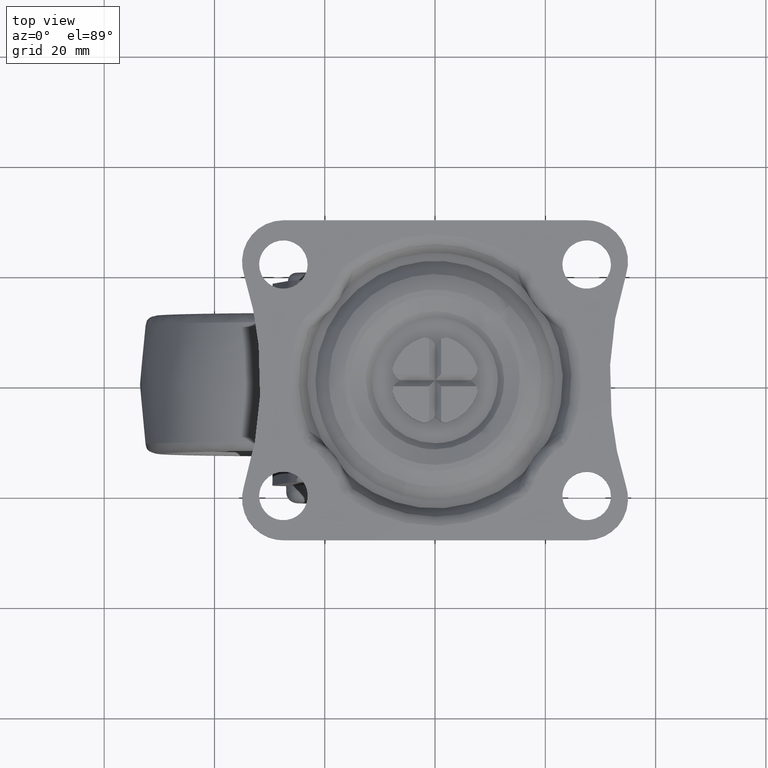
[diagram: clean part render]
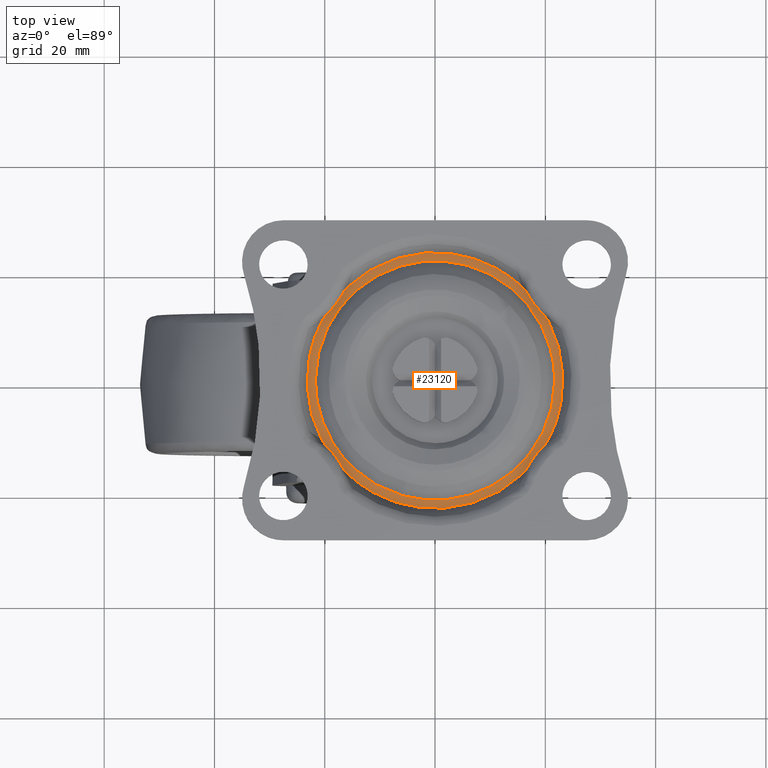
[diagram: same view with one face highlighted and labeled with its STEP entity id]
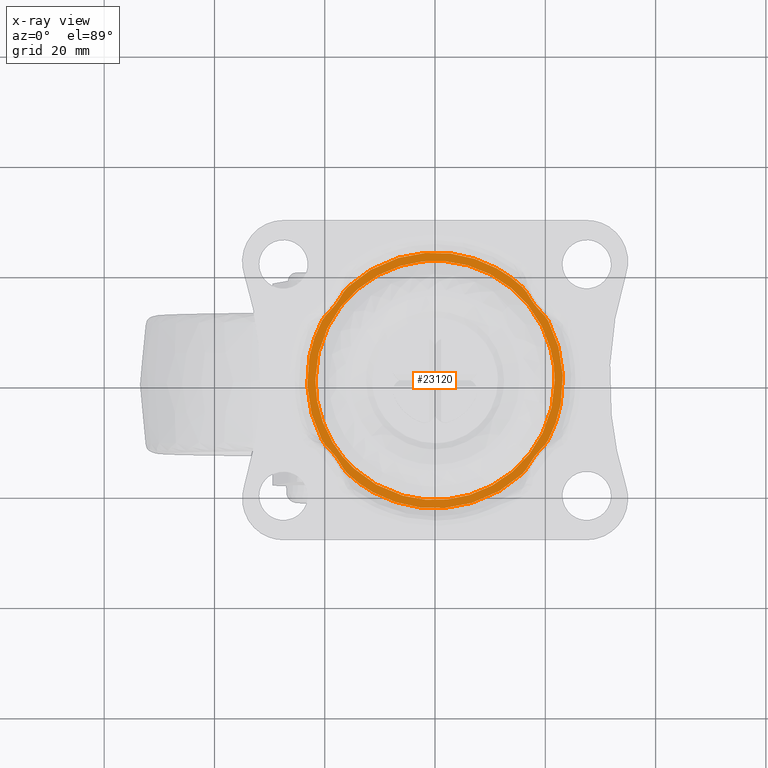
[diagram: x-ray of the same camera — body ghosted, the highlighted face saturated]
A machine part, top view. The second image highlights one B-rep face of the part: STEP entity #23120.
The next image is the same camera in x-ray: the body ghosted, the highlighted face saturated — about 0% of this face is hidden behind the body in this view.
In plain terms, the highlighted face is a freeform B-spline surface patch.
Its self-contained STEP definition (entity closure, byte-faithful):
#15090=CARTESIAN_POINT('',(-5.799073028156984,-20.910781798254249,-3.600002000002258));
#15091=VERTEX_POINT('',#15090);
#15097=CARTESIAN_POINT('',(21.700001000000000,0.0,-3.600002000000000));
#15098=VERTEX_POINT('',#15097);
#15099=CARTESIAN_POINT('',(21.700001000000000,0.0,-3.600002000000000));
#15100=CARTESIAN_POINT('',(21.700000999999993,-21.700000999999993,-3.600002000000001));
#15101=CARTESIAN_POINT('',(0.0,-21.700001000000000,-3.600002000000000));
#15102=CARTESIAN_POINT('',(-2.953240523797016,-21.700001000000004,-3.600002000000001));
#15103=CARTESIAN_POINT('',(-5.799073028156984,-20.910781798254252,-3.600002000002258));
#15111=(BOUNDED_CURVE()B_SPLINE_CURVE(2,(#15099,#15100,#15101,#15102,#15103),.UNSPECIFIED.,.F.,.U.)B_SPLINE_CURVE_WITH_KNOTS((3,2,3),(0.500000000000000,0.750000000000000,0.795548826634293),.UNSPECIFIED.)CURVE()GEOMETRIC_REPRESENTATION_ITEM()RATIONAL_B_SPLINE_CURVE((1.0,0.707106781186548,1.0,0.946636230215624,0.912717717218935))REPRESENTATION_ITEM(''));
#15112=EDGE_CURVE('',#15098,#15091,#15111,.T.);
#15114=CARTESIAN_POINT('',(-21.700001000000000,0.0,-3.600002000000000));
#15115=VERTEX_POINT('',#15114);
#15116=CARTESIAN_POINT('',(-21.700001000000000,0.0,-3.600002000000000));
#15117=CARTESIAN_POINT('',(-21.700000999999993,21.700000999999993,-3.600002000000001));
#15118=CARTESIAN_POINT('',(0.0,21.700001000000000,-3.600002000000000));
#15119=CARTESIAN_POINT('',(21.700000999999993,21.700000999999993,-3.600002000000001));
#15120=CARTESIAN_POINT('',(21.700001000000000,0.0,-3.600002000000000));
#15128=(BOUNDED_CURVE()B_SPLINE_CURVE(2,(#15116,#15117,#15118,#15119,#15120),.UNSPECIFIED.,.F.,.U.)B_SPLINE_CURVE_WITH_KNOTS((3,2,3),(0.0,0.250000000000000,0.500000000000000),.UNSPECIFIED.)CURVE()GEOMETRIC_REPRESENTATION_ITEM()RATIONAL_B_SPLINE_CURVE((1.0,0.707106781186548,1.0,0.707106781186548,1.0))REPRESENTATION_ITEM(''));
#15129=EDGE_CURVE('',#15115,#15098,#15128,.T.);
#15131=CARTESIAN_POINT('',(-18.522360696835559,-11.305405681198110,-3.600002000003324));
#15132=VERTEX_POINT('',#15131);
#15133=CARTESIAN_POINT('',(-18.522360696835559,-11.305405681198108,-3.600002000003324));
#15134=CARTESIAN_POINT('',(-21.700001000000007,-6.099276726655910,-3.600002000000000));
#15135=CARTESIAN_POINT('',(-21.700001000000000,0.0,-3.600002000000000));
#15143=(BOUNDED_CURVE()B_SPLINE_CURVE(2,(#15133,#15134,#15135),.UNSPECIFIED.,.F.,.U.)B_SPLINE_CURVE_WITH_KNOTS((3,3),(0.910988855203651,1.0),.UNSPECIFIED.)CURVE()GEOMETRIC_REPRESENTATION_ITEM()RATIONAL_B_SPLINE_CURVE((0.865692738529966,0.895716957161308,1.0))REPRESENTATION_ITEM(''));
#15144=EDGE_CURVE('',#15132,#15115,#15143,.T.);
#15182=CARTESIAN_POINT('',(-5.799073028156984,-20.910781798254245,-3.600002000002259));
#15183=CARTESIAN_POINT('',(-14.057464632220782,-18.620527111970446,-3.600002000000001));
#15184=CARTESIAN_POINT('',(-18.522360696835555,-11.305405681198108,-3.600002000003324));
#15192=(BOUNDED_CURVE()B_SPLINE_CURVE(2,(#15182,#15183,#15184),.UNSPECIFIED.,.F.,.U.)B_SPLINE_CURVE_WITH_KNOTS((3,3),(0.795548826634294,0.910988855203652),.UNSPECIFIED.)CURVE()GEOMETRIC_REPRESENTATION_ITEM()RATIONAL_B_SPLINE_CURVE((0.912717717218933,0.826753831896366,0.865692738529966))REPRESENTATION_ITEM(''));
#15193=EDGE_CURVE('',#15091,#15132,#15192,.T.);
#20008=CARTESIAN_POINT('',(20.530049277063799,-10.805421004353921,-3.600002000000000));
#20009=VERTEX_POINT('',#20008);
#20023=CARTESIAN_POINT('',(19.024620323779502,-12.646680938458740,-3.600002000000000));
#20024=VERTEX_POINT('',#20023);
#20025=CARTESIAN_POINT('',(19.024620323779502,-12.646680938458740,-3.600002000000000));
#20026=CARTESIAN_POINT('',(19.304072781784900,-12.363145057020530,-3.600002000001871));
#20027=CARTESIAN_POINT('',(19.584817843114529,-12.080666018472000,-3.600002000000000));
#20028=CARTESIAN_POINT('',(19.973236361153251,-11.630212434395309,-3.600002000000001));
#20029=CARTESIAN_POINT('',(20.097347172847339,-11.475677202704111,-3.600002000000000));
#20030=CARTESIAN_POINT('',(20.328586572117519,-11.152721936092741,-3.600002000000000));
#20031=CARTESIAN_POINT('',(20.435844590098771,-10.984407724514391,-3.600002000000000));
#20032=CARTESIAN_POINT('',(20.530049277063799,-10.805421004353921,-3.600002000000000));
#20033=B_SPLINE_CURVE_WITH_KNOTS('',3,(#20025,#20026,#20027,#20028,#20029,#20030,#20031,#20032),.UNSPECIFIED.,.F.,.U.,(4,2,2,4),(0.0,0.499999999999999,0.750000000000000,1.0),.UNSPECIFIED.);
#20034=EDGE_CURVE('',#20024,#20009,#20033,.T.);
#20603=CARTESIAN_POINT('',(15.829909621735750,-16.960365791093050,-3.600002000000000));
#20604=VERTEX_POINT('',#20603);
#20605=CARTESIAN_POINT('',(17.209795816244348,-15.023236841180850,-3.600002000000000));
#20606=VERTEX_POINT('',#20605);
#20607=CARTESIAN_POINT('',(15.829909621735750,-16.960365791093050,-3.600002000000000));
#20608=CARTESIAN_POINT('',(15.977016748611719,-16.823063768728481,-3.600002000000000));
#20609=CARTESIAN_POINT('',(16.110842096708431,-16.675761793889819,-3.600002000000001));
#20610=CARTESIAN_POINT('',(16.361256787577311,-16.368180724434112,-3.600002000000000));
#20611=CARTESIAN_POINT('',(16.477721513431380,-16.207807804789638,-3.600002000000000));
#20612=CARTESIAN_POINT('',(16.699521433103278,-15.878682456003400,-3.600002000000000));
#20613=CARTESIAN_POINT('',(16.804807563023431,-15.709893086279150,-3.600002000000000));
#20614=CARTESIAN_POINT('',(17.009965051494522,-15.368237524196410,-3.600002000000000));
#20615=CARTESIAN_POINT('',(17.109689103661179,-15.195590753369640,-3.600002000000000));
#20616=CARTESIAN_POINT('',(17.209795816244348,-15.023236841180850,-3.600002000000000));
#20617=B_SPLINE_CURVE_WITH_KNOTS('',3,(#20607,#20608,#20609,#20610,#20611,#20612,#20613,#20614,#20615,#20616),.UNSPECIFIED.,.F.,.U.,(4,2,2,2,4),(0.0,0.250000000000000,0.500000000000000,0.750000000000000,1.0),.UNSPECIFIED.);
#20618=EDGE_CURVE('',#20604,#20606,#20617,.T.);
#20838=CARTESIAN_POINT('',(20.530049277063799,10.805421004353899,-3.600002000000000));
#20839=VERTEX_POINT('',#20838);
#20840=CARTESIAN_POINT('',(19.024620323782699,12.646680938455500,-3.600002000000000));
#20841=VERTEX_POINT('',#20840);
#20842=CARTESIAN_POINT('',(20.530049277063799,10.805421004353899,-3.600002000000000));
#20843=CARTESIAN_POINT('',(20.436327569749000,10.983490074381629,-3.600002000000000));
#20844=CARTESIAN_POINT('',(20.329461551832800,11.151379174083690,-3.600002000000001));
#20845=CARTESIAN_POINT('',(20.098671905624641,11.473946641276850,-3.600002000000000));
#20846=CARTESIAN_POINT('',(19.974624950216288,11.628529494714520,-3.600002000000000));
#20847=CARTESIAN_POINT('',(19.715516699500888,11.929164845245889,-3.600002000000000));
#20848=CARTESIAN_POINT('',(19.580406848114048,12.075179736757500,-3.600002000000000));
#20849=CARTESIAN_POINT('',(19.304828417575319,12.363059306712410,-3.600002000000000));
#20850=CARTESIAN_POINT('',(19.164532729241099,12.504724100827710,-3.600002000000000));
#20851=CARTESIAN_POINT('',(19.024620323782699,12.646680938455500,-3.600002000000000));
#20852=B_SPLINE_CURVE_WITH_KNOTS('',3,(#20842,#20843,#20844,#20845,#20846,#20847,#20848,#20849,#20850,#20851),.UNSPECIFIED.,.F.,.U.,(4,2,2,2,4),(0.0,0.250000000000000,0.500000000000000,0.750000000000000,1.0),.UNSPECIFIED.);
#20853=EDGE_CURVE('',#20839,#20841,#20852,.T.);
#21201=CARTESIAN_POINT('',(-17.209795816238302,-15.023236841191251,-3.600002000000000));
#21202=VERTEX_POINT('',#21201);
#21203=CARTESIAN_POINT('',(-15.829909621735750,-16.960365791093050,-3.600002000000000));
#21204=VERTEX_POINT('',#21203);
#21205=CARTESIAN_POINT('',(-17.209795816238302,-15.023236841191251,-3.600002000000000));
#21206=CARTESIAN_POINT('',(-17.009848807948529,-15.367485975139569,-3.600002000001870));
#21207=CARTESIAN_POINT('',(-16.811261705054921,-15.712703818311970,-3.600001999999999));
#21208=CARTESIAN_POINT('',(-16.478979431681040,-16.206025080132719,-3.600002000000000));
#21209=CARTESIAN_POINT('',(-16.362577461151272,-16.366447063258509,-3.600002000000000));
#21210=CARTESIAN_POINT('',(-16.111907081267180,-16.674564126491990,-3.600002000000000));
#21211=CARTESIAN_POINT('',(-15.977774841380450,-16.822356204978881,-3.600002000000000));
#21212=CARTESIAN_POINT('',(-15.829909621735750,-16.960365791093050,-3.600002000000000));
#21213=B_SPLINE_CURVE_WITH_KNOTS('',3,(#21205,#21206,#21207,#21208,#21209,#21210,#21211,#21212),.UNSPECIFIED.,.F.,.U.,(4,2,2,4),(0.0,0.499999999999999,0.749999999999999,1.0),.UNSPECIFIED.);
#21214=EDGE_CURVE('',#21202,#21204,#21213,.T.);
#21434=CARTESIAN_POINT('',(17.209795816236049,15.023236841195150,-3.600002000000000));
#21435=VERTEX_POINT('',#21434);
#21436=CARTESIAN_POINT('',(15.829909621735750,16.960365791093050,-3.600002000000000));
#21437=VERTEX_POINT('',#21436);
#21438=CARTESIAN_POINT('',(17.209795816236049,15.023236841195150,-3.600002000000000));
#21439=CARTESIAN_POINT('',(17.009848807946771,15.367485975142920,-3.600002000000000));
#21440=CARTESIAN_POINT('',(16.811261705053330,15.712703818314520,-3.600002000000000));
#21441=CARTESIAN_POINT('',(16.478979431679939,16.206025080134250,-3.600002000000000));
#21442=CARTESIAN_POINT('',(16.362577461150352,16.366447063259699,-3.600002000000000));
#21443=CARTESIAN_POINT('',(16.111907081266679,16.674564126492559,-3.600002000000000));
#21444=CARTESIAN_POINT('',(15.977774841380160,16.822356204979140,-3.600002000000000));
#21445=CARTESIAN_POINT('',(15.829909621735750,16.960365791093050,-3.600002000000000));
#21446=B_SPLINE_CURVE_WITH_KNOTS('',3,(#21438,#21439,#21440,#21441,#21442,#21443,#21444,#21445),.UNSPECIFIED.,.F.,.U.,(4,2,2,4),(0.0,0.500000000000000,0.750000000000000,1.0),.UNSPECIFIED.);
#21447=EDGE_CURVE('',#21435,#21437,#21446,.T.);
#21777=CARTESIAN_POINT('',(-20.530049277062751,-10.805421004355940,-3.600002000000000));
#21778=VERTEX_POINT('',#21777);
#21779=CARTESIAN_POINT('',(-19.024620323782699,-12.646680938455500,-3.600002000000000));
#21780=VERTEX_POINT('',#21779);
#21781=CARTESIAN_POINT('',(-20.530049277062751,-10.805421004355940,-3.600002000000000));
#21782=CARTESIAN_POINT('',(-20.436327569747181,-10.983490074383020,-3.600002000001655));
#21783=CARTESIAN_POINT('',(-20.329461551831610,-11.151379174085490,-3.600002000000001));
#21784=CARTESIAN_POINT('',(-20.098671905623590,-11.473946641278211,-3.600002000000000));
#21785=CARTESIAN_POINT('',(-19.974624950215329,-11.628529494715680,-3.600002000000000));
#21786=CARTESIAN_POINT('',(-19.715516699500171,-11.929164845246680,-3.600002000000000));
#21787=CARTESIAN_POINT('',(-19.580406848113469,-12.075179736758120,-3.600002000000000));
#21788=CARTESIAN_POINT('',(-19.304828417575020,-12.363059306712710,-3.600002000000000));
#21789=CARTESIAN_POINT('',(-19.164532729240950,-12.504724100827859,-3.600002000000000));
#21790=CARTESIAN_POINT('',(-19.024620323782699,-12.646680938455500,-3.600002000000000));
#21791=B_SPLINE_CURVE_WITH_KNOTS('',3,(#21781,#21782,#21783,#21784,#21785,#21786,#21787,#21788,#21789,#21790),.UNSPECIFIED.,.F.,.U.,(4,2,2,2,4),(0.0,0.250000000000000,0.500000000000000,0.750000000000000,1.0),.UNSPECIFIED.);
#21792=EDGE_CURVE('',#21778,#21780,#21791,.T.);
#22012=CARTESIAN_POINT('',(-15.829909621737450,16.960365791091451,-3.600002000000000));
#22013=VERTEX_POINT('',#22012);
#22014=CARTESIAN_POINT('',(-17.209795816236049,15.023236841195150,-3.600002000000000));
#22015=VERTEX_POINT('',#22014);
#22016=CARTESIAN_POINT('',(-15.829909621737450,16.960365791091451,-3.600002000000000));
#22017=CARTESIAN_POINT('',(-15.977016748611570,16.823063768727270,-3.600002000001655));
#22018=CARTESIAN_POINT('',(-16.110842096708009,16.675761793890199,-3.600002000000001));
#22019=CARTESIAN_POINT('',(-16.361256787575009,16.368180724437060,-3.600002000000000));
#22020=CARTESIAN_POINT('',(-16.477721513428271,16.207807804793958,-3.600002000000000));
#22021=CARTESIAN_POINT('',(-16.699521433098660,15.878682456010569,-3.600002000000000));
#22022=CARTESIAN_POINT('',(-16.804807563018102,15.709893086287771,-3.600002000000000));
#22023=CARTESIAN_POINT('',(-17.009965051487761,15.368237524207929,-3.600002000000000));
#22024=CARTESIAN_POINT('',(-17.109689103653711,15.195590753382580,-3.600002000000000));
#22025=CARTESIAN_POINT('',(-17.209795816236049,15.023236841195150,-3.600002000000000));
#22026=B_SPLINE_CURVE_WITH_KNOTS('',3,(#22016,#22017,#22018,#22019,#22020,#22021,#22022,#22023,#22024,#22025),.UNSPECIFIED.,.F.,.U.,(4,2,2,2,4),(0.0,0.250000000000000,0.500000000000000,0.750000000000000,1.0),.UNSPECIFIED.);
#22027=EDGE_CURVE('',#22013,#22015,#22026,.T.);
#22229=CARTESIAN_POINT('',(-20.530049277063799,10.805421004353921,-3.600002000000000));
#22230=VERTEX_POINT('',#22229);
#22244=CARTESIAN_POINT('',(-19.024620323779502,12.646680938458720,-3.600002000000000));
#22245=VERTEX_POINT('',#22244);
#22246=CARTESIAN_POINT('',(-19.024620323779502,12.646680938458720,-3.600002000000000));
#22247=CARTESIAN_POINT('',(-19.304072781784889,12.363145057020510,-3.600002000001871));
#22248=CARTESIAN_POINT('',(-19.584817843114539,12.080666018472000,-3.600001999999999));
#22249=CARTESIAN_POINT('',(-19.973236361153241,11.630212434395300,-3.600002000000000));
#22250=CARTESIAN_POINT('',(-20.097347172847350,11.475677202704111,-3.600002000000000));
#22251=CARTESIAN_POINT('',(-20.328586572117509,11.152721936092741,-3.600002000000000));
#22252=CARTESIAN_POINT('',(-20.435844590098782,10.984407724514400,-3.600002000000000));
#22253=CARTESIAN_POINT('',(-20.530049277063799,10.805421004353940,-3.600002000000000));
#22254=B_SPLINE_CURVE_WITH_KNOTS('',3,(#22246,#22247,#22248,#22249,#22250,#22251,#22252,#22253),.UNSPECIFIED.,.F.,.U.,(4,2,2,4),(0.0,0.500000000000001,0.750000000000001,1.0),.UNSPECIFIED.);
#22255=EDGE_CURVE('',#22245,#22230,#22254,.T.);
#22889=CARTESIAN_POINT('',(-19.024620323779519,12.646680938458729,-3.600002000000000));
#22890=CARTESIAN_POINT('',(-17.966719334859096,13.720040219349803,-3.600002000000000));
#22891=CARTESIAN_POINT('',(-17.209795816236049,15.023236841195150,-3.600002000000000));
#22899=(BOUNDED_CURVE()B_SPLINE_CURVE(2,(#22889,#22890,#22891),.UNSPECIFIED.,.F.,.U.)CURVE()GEOMETRIC_REPRESENTATION_ITEM()QUASI_UNIFORM_CURVE()RATIONAL_B_SPLINE_CURVE((1.0,0.992075794045624,1.0))REPRESENTATION_ITEM(''));
#22900=EDGE_CURVE('',#22245,#22015,#22899,.T.);
#22922=CARTESIAN_POINT('',(17.209795816236049,15.023236841195150,-3.600002000000000));
#22923=CARTESIAN_POINT('',(17.966719334860251,13.720040219347814,-3.600002000000001));
#22924=CARTESIAN_POINT('',(19.024620323782699,12.646680938455500,-3.600002000000000));
#22932=(BOUNDED_CURVE()B_SPLINE_CURVE(2,(#22922,#22923,#22924),.UNSPECIFIED.,.F.,.U.)CURVE()GEOMETRIC_REPRESENTATION_ITEM()QUASI_UNIFORM_CURVE()RATIONAL_B_SPLINE_CURVE((1.0,0.992075794045600,1.0))REPRESENTATION_ITEM(''));
#22933=EDGE_CURVE('',#21435,#20841,#22932,.T.);
#22957=CARTESIAN_POINT('',(19.024620323779502,-12.646680938458740,-3.600002000000000));
#22958=CARTESIAN_POINT('',(17.966719334864987,-13.720040219343833,-3.600002000000001));
#22959=CARTESIAN_POINT('',(17.209795816244359,-15.023236841180850,-3.600002000000000));
#22967=(BOUNDED_CURVE()B_SPLINE_CURVE(2,(#22957,#22958,#22959),.UNSPECIFIED.,.F.,.U.)CURVE()GEOMETRIC_REPRESENTATION_ITEM()QUASI_UNIFORM_CURVE()RATIONAL_B_SPLINE_CURVE((1.0,0.992075794045711,1.0))REPRESENTATION_ITEM(''));
#22968=EDGE_CURVE('',#20024,#20606,#22967,.T.);
#22988=CARTESIAN_POINT('',(-17.209795816238309,-15.023236841191260,-3.600002000000000));
#22989=CARTESIAN_POINT('',(-17.966719334861857,-13.720040219346185,-3.600002000000000));
#22990=CARTESIAN_POINT('',(-19.024620323782699,-12.646680938455500,-3.600002000000000));
#22998=(BOUNDED_CURVE()B_SPLINE_CURVE(2,(#22988,#22989,#22990),.UNSPECIFIED.,.F.,.U.)CURVE()GEOMETRIC_REPRESENTATION_ITEM()QUASI_UNIFORM_CURVE()RATIONAL_B_SPLINE_CURVE((1.0,0.992075794045624,1.0))REPRESENTATION_ITEM(''));
#22999=EDGE_CURVE('',#21202,#21780,#22998,.T.);
#23043=CARTESIAN_POINT('',(-25.517681009967770,-25.517681009967720,-3.600002000000000));
#23044=CARTESIAN_POINT('',(25.517682254512810,-25.517681009967720,-3.600002000000000));
#23045=CARTESIAN_POINT('',(-25.517681009967770,25.517682254512760,-3.600002000000000));
#23046=CARTESIAN_POINT('',(25.517682254512810,25.517682254512760,-3.600002000000000));
#23047=B_SPLINE_SURFACE_WITH_KNOTS('',1,1,((#23043,#23045),(#23044,#23046)),.UNSPECIFIED.,.F.,.F.,.U.,(2,2),(2,2),(0.0,51.035363264480587),(0.0,51.035363264480480),.UNSPECIFIED.);
#23048=ORIENTED_EDGE('',*,*,#22968,.F.);
#23049=ORIENTED_EDGE('',*,*,#20034,.T.);
#23050=CARTESIAN_POINT('',(20.530049277063810,10.805421004353910,-3.600002000000000));
#23051=CARTESIAN_POINT('',(26.217182391341034,-3.469447E-015,-3.600002000000000));
#23052=CARTESIAN_POINT('',(20.530049277063810,-10.805421004353921,-3.600002000000000));
#23060=(BOUNDED_CURVE()B_SPLINE_CURVE(2,(#23050,#23051,#23052),.UNSPECIFIED.,.F.,.U.)CURVE()GEOMETRIC_REPRESENTATION_ITEM()QUASI_UNIFORM_CURVE()RATIONAL_B_SPLINE_CURVE((1.0,0.884915878971894,1.0))REPRESENTATION_ITEM(''));
#23061=EDGE_CURVE('',#20839,#20009,#23060,.T.);
#23062=ORIENTED_EDGE('',*,*,#23061,.F.);
#23063=ORIENTED_EDGE('',*,*,#20853,.T.);
#23064=ORIENTED_EDGE('',*,*,#22933,.F.);
#23065=ORIENTED_EDGE('',*,*,#21447,.T.);
#23066=CARTESIAN_POINT('',(-15.829909621737450,16.960365791091451,-3.600002000000000));
#23067=CARTESIAN_POINT('',(-1.595946E-012,31.735167332457539,-3.600002000000000));
#23068=CARTESIAN_POINT('',(15.829909621735750,16.960365791093039,-3.600002000000000));
#23076=(BOUNDED_CURVE()B_SPLINE_CURVE(2,(#23066,#23067,#23068),.UNSPECIFIED.,.F.,.U.)CURVE()GEOMETRIC_REPRESENTATION_ITEM()QUASI_UNIFORM_CURVE()RATIONAL_B_SPLINE_CURVE((1.0,0.731050218105260,1.0))REPRESENTATION_ITEM(''));
#23077=EDGE_CURVE('',#22013,#21437,#23076,.T.);
#23078=ORIENTED_EDGE('',*,*,#23077,.F.);
#23079=ORIENTED_EDGE('',*,*,#22027,.T.);
#23080=ORIENTED_EDGE('',*,*,#22900,.F.);
#23081=ORIENTED_EDGE('',*,*,#22255,.T.);
#23082=CARTESIAN_POINT('',(-20.530049277062741,-10.805421004355940,-3.600002000000000));
#23083=CARTESIAN_POINT('',(-26.217182391341716,-1.287165E-012,-3.600002000000000));
#23084=CARTESIAN_POINT('',(-20.530049277063810,10.805421004353921,-3.600002000000000));
#23092=(BOUNDED_CURVE()B_SPLINE_CURVE(2,(#23082,#23083,#23084),.UNSPECIFIED.,.F.,.U.)CURVE()GEOMETRIC_REPRESENTATION_ITEM()QUASI_UNIFORM_CURVE()RATIONAL_B_SPLINE_CURVE((1.0,0.884915878971871,1.0))REPRESENTATION_ITEM(''));
#23093=EDGE_CURVE('',#21778,#22230,#23092,.T.);
#23094=ORIENTED_EDGE('',*,*,#23093,.F.);
#23095=ORIENTED_EDGE('',*,*,#21792,.T.);
#23096=ORIENTED_EDGE('',*,*,#22999,.F.);
#23097=ORIENTED_EDGE('',*,*,#21214,.T.);
#23098=CARTESIAN_POINT('',(15.829909621735750,-16.960365791093039,-3.600002000000000));
#23099=CARTESIAN_POINT('',(1.040834E-014,-31.735167332456040,-3.600002000000000));
#23100=CARTESIAN_POINT('',(-15.829909621735739,-16.960365791093050,-3.600002000000000));
#23108=(BOUNDED_CURVE()B_SPLINE_CURVE(2,(#23098,#23099,#23100),.UNSPECIFIED.,.F.,.U.)CURVE()GEOMETRIC_REPRESENTATION_ITEM()QUASI_UNIFORM_CURVE()RATIONAL_B_SPLINE_CURVE((1.0,0.731050218105294,1.0))REPRESENTATION_ITEM(''));
#23109=EDGE_CURVE('',#20604,#21204,#23108,.T.);
#23110=ORIENTED_EDGE('',*,*,#23109,.F.);
#23111=ORIENTED_EDGE('',*,*,#20618,.T.);
#23112=EDGE_LOOP('',(#23048,#23049,#23062,#23063,#23064,#23065,#23078,#23079,#23080,#23081,#23094,#23095,#23096,#23097,#23110,#23111));
#23113=FACE_OUTER_BOUND('',#23112,.T.);
#23114=ORIENTED_EDGE('',*,*,#15129,.T.);
#23115=ORIENTED_EDGE('',*,*,#15112,.T.);
#23116=ORIENTED_EDGE('',*,*,#15193,.T.);
#23117=ORIENTED_EDGE('',*,*,#15144,.T.);
#23118=EDGE_LOOP('',(#23114,#23115,#23116,#23117));
#23119=FACE_BOUND('',#23118,.T.);
#23120=ADVANCED_FACE('',(#23113,#23119),#23047,.T.);